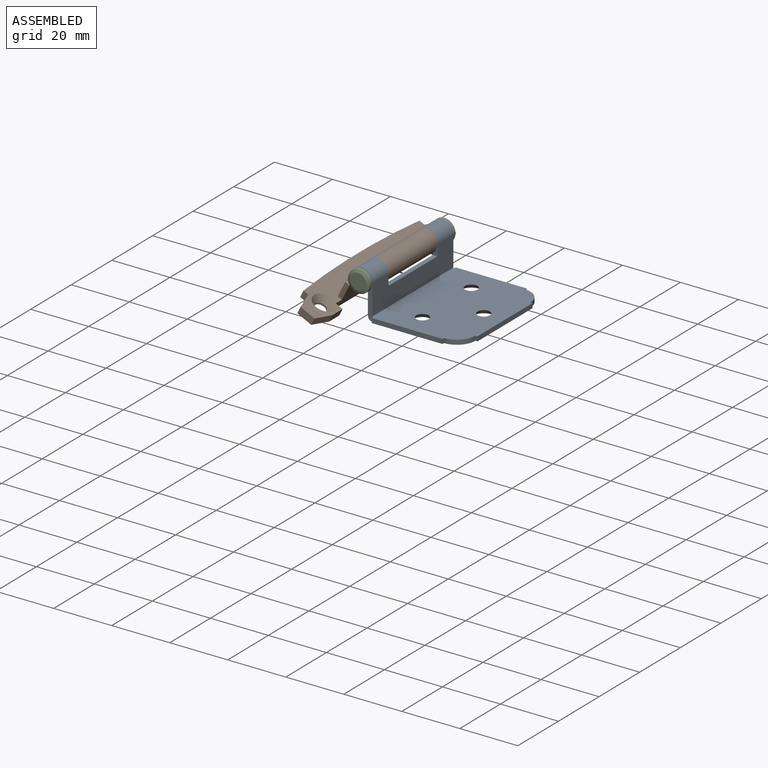
[diagram: assembled view]
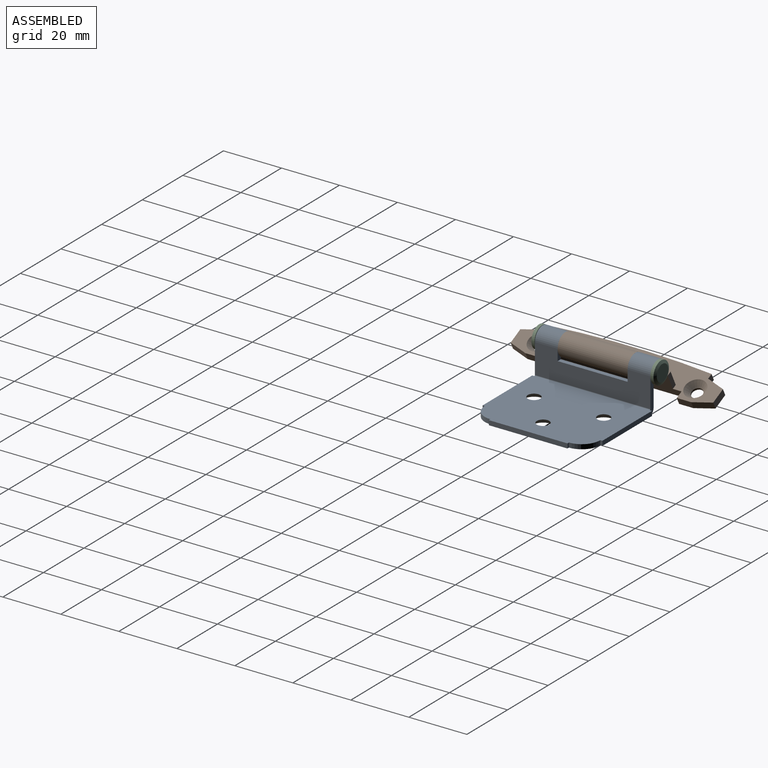
[diagram: assembled view, second angle]
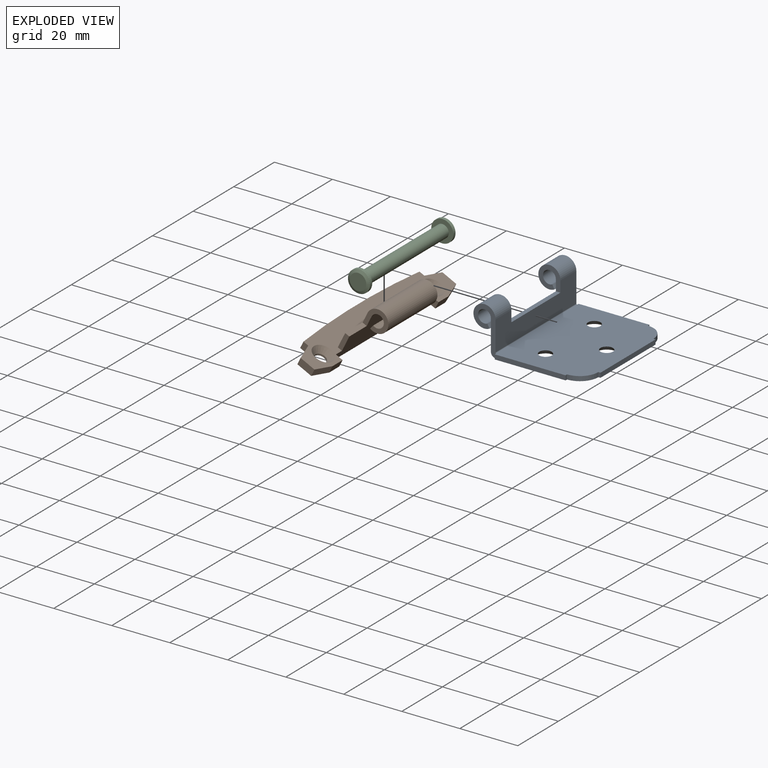
[diagram: exploded view]
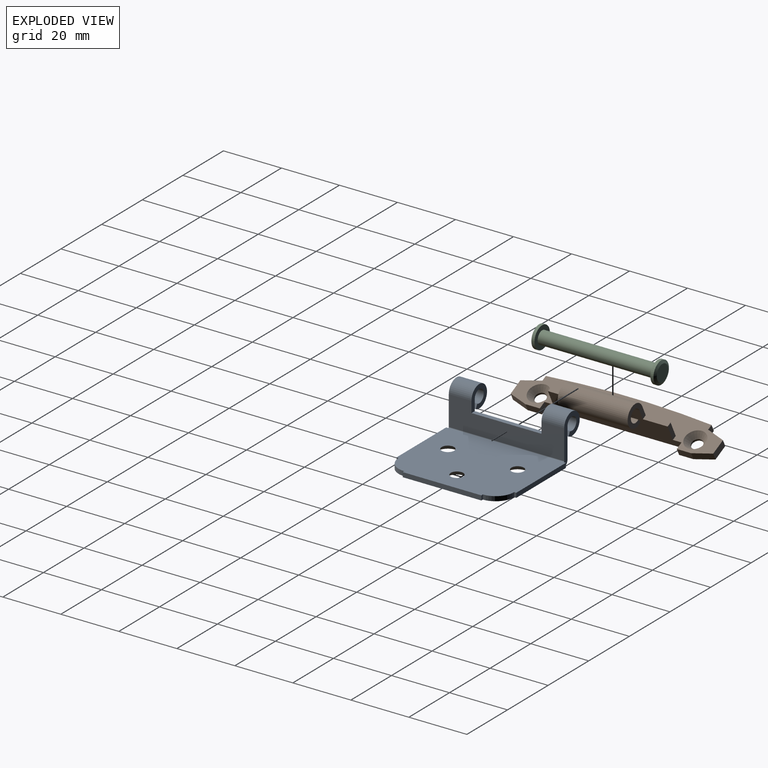
[diagram: exploded view, second angle]
ASSEMBLY  parts=3 mates=2
PART A: 31 faces, bbox 39.4x41.3x15.9 mm
  f0: plane 41.28x31.72mm, normal (0,0,-1), area 1153.7mm2, adj f9,f11,f12,f14,f15,f16,f17,f18
  f1: cylinder r=2.22mm len=7.84mm, axis (0,-1,0), area 90.2mm2, adj f2,f10,f22,f25
  f2: plane 7.84x1.42mm, normal (0.89,0,0.45), area 12.4mm2, adj f1,f6,f22,f25
  f3: cylinder r=3.81mm len=7.84mm, axis (0,-1,0), area 154.6mm2, adj f5,f7,f24,f27
  f4: cylinder r=2.22mm len=7.84mm, axis (0,-1,0), area 90.2mm2, adj f5,f10,f24,f27
  f5: plane 7.84x1.42mm, normal (0.89,0,0.45), area 12.4mm2, adj f3,f4,f24,f27
  f6: cylinder r=3.81mm len=7.84mm, axis (0,-1,0), area 154.6mm2, adj f2,f7,f22,f25
  f7: plane 39.8x10.22mm, normal (1,0,0), area 315mm2, adj f3,f6,f13,f22,f24,f25,f26,f27
  f8: plane 41.28x31.5mm, normal (0,0,1), area 1218.8mm2, adj f9,f11,f12,f13,f15,f16,f17,f18
  f9: plane 27.1x1.59mm, normal (1,0,0), area 43mm2, adj f0,f8,f15,f18
  f10: plane 39.8x10.45mm, normal (-1,0,0), area 324.1mm2, adj f1,f4,f14,f22,f24,f25,f26,f27
  f11: plane 24.41x1.59mm, normal (0,1,0), area 38.7mm2, adj f0,f8,f20,f21
  f12: plane 24.41x1.59mm, normal (0,-1,0), area 38.7mm2, adj f0,f8,f16,f23
  f13: cylinder r=0.25mm len=39.8mm, axis (0,1,0), area 15.9mm2, adj f7,f8,f22,f24
  f14: cylinder r=1.61mm len=39.8mm, axis (0,-1,0), area 100.8mm2, adj f0,f10,f22,f24
  f15: plane 1.59x0.74mm, normal (0,-1,0), area 1.2mm2, adj f0,f8,f9,f17
  f16: plane 1.59x0.74mm, normal (1,0,0), area 1.2mm2, adj f0,f8,f12,f17
  f17: cylinder r=6.35mm len=6.35mm, axis (0,0,1), area 15.8mm2, adj f0,f8,f15,f16
  f18: plane 1.59x0.74mm, normal (0,1,0), area 1.2mm2, adj f0,f8,f9,f19
  f19: cylinder r=6.35mm len=6.35mm, axis (0,0,1), area 15.8mm2, adj f0,f8,f18,f20
  f20: plane 1.59x0.74mm, normal (1,0,0), area 1.2mm2, adj f0,f8,f11,f19
  f21: plane 1.59x0.74mm, normal (-1,0,0), area 1.2mm2, adj f0,f8,f11,f22
  f22: plane 15.88x7.87mm, normal (0,1,0), area 43.8mm2, adj f0,f1,f2,f6,f7,f10,f13,f14
  f23: plane 1.59x0.74mm, normal (-1,0,0), area 1.2mm2, adj f0,f8,f12,f24
  f24: plane 15.88x7.87mm, normal (0,-1,0), area 43.8mm2, adj f0,f3,f4,f5,f7,f10,f13,f14
  f25: plane 7.62x7.62mm, normal (0,-1,0), area 30.8mm2, adj f1,f2,f6,f7,f10,f26
  f26: plane 24.13x1.59mm, normal (0,0,1), area 38.3mm2, adj f7,f10,f25,f27
  f27: plane 7.62x7.62mm, normal (0,1,0), area 30.8mm2, adj f3,f4,f5,f7,f10,f26
  f28: cone r=3.54mm half-angle=41deg, axis (0,0,-1), area 37.7mm2, adj f0,f8
  f29: cone r=3.54mm half-angle=41deg, axis (0,0,-1), area 37.7mm2, adj f0,f8
  f30: cone r=3.54mm half-angle=41deg, axis (0,0,-1), area 37.7mm2, adj f0,f8
PART B: 30 faces, bbox 15.9x69.9x15.9 mm
  f0: plane 6.35x2.54mm, normal (0.95,0.3,0), area 16.9mm2, adj f1,f7,f8,f9
  f1: plane 5.33x2.54mm, normal (0,1,0), area 13.5mm2, adj f0,f2,f8,f9
  f2: plane 6.35x2.54mm, normal (-0.95,0.3,0), area 16.9mm2, adj f1,f3,f8,f9
  f3: plane 2.54x1.86mm, normal (0,1,0), area 4.7mm2, adj f2,f4,f8,f9
  f4: cylinder r=328.61mm len=57.15mm, axis (0,0,-1), area 145.3mm2, adj f3,f8,f9,f13
  f5: plane 47.24x12.07mm, normal (1,0,0), area 447.8mm2, adj f6,f8,f9,f14,f19,f20,f21,f22
  f6: plane 2.58x2.54mm, normal (0,-1,0), area 6.6mm2, adj f5,f7,f8,f9
  f7: plane 4.95x2.54mm, normal (1,0,0), area 12.6mm2, adj f0,f6,f8,f9
  f8: plane 69.85x12.45mm, normal (0,0,1), area 514.5mm2, adj f0,f1,f2,f3,f4,f5,f6,f7
  f9: plane 69.85x12.45mm, normal (0,0,-1), area 636.3mm2, adj f0,f1,f2,f3,f4,f5,f6,f7
  f10: plane 6.35x2.54mm, normal (0.95,-0.3,0), area 16.9mm2, adj f8,f9,f11,f15
  f11: plane 5.33x2.54mm, normal (0,-1,0), area 13.5mm2, adj f8,f9,f10,f12
  f12: plane 6.35x2.54mm, normal (-0.95,-0.3,0), area 16.9mm2, adj f8,f9,f11,f13
  f13: plane 2.54x1.86mm, normal (0,-1,0), area 4.7mm2, adj f4,f8,f9,f12
  f14: plane 2.58x2.54mm, normal (0,1,0), area 6.6mm2, adj f5,f8,f9,f15
  f15: plane 4.95x2.54mm, normal (1,0,0), area 12.6mm2, adj f8,f9,f10,f14
  f16: cylinder r=3.81mm len=24.13mm, axis (0,-1,0), area 456.5mm2, adj f17,f18,f22,f24
  f17: plane 41.28x9.53mm, normal (-1,0,0), area 327.8mm2, adj f8,f16,f20,f21,f22,f23,f24,f25
  f18: plane 24.13x1.54mm, normal (-0.97,0,0.25), area 38.3mm2, adj f16,f19,f22,f24
  f19: cylinder r=2.22mm len=24.13mm, axis (0,-1,0), area 266.3mm2, adj f5,f18,f22,f24
  f20: plane 5.72x1.59mm, normal (0,1,0), area 9.1mm2, adj f5,f8,f17,f23
  f21: plane 5.72x1.59mm, normal (0,-1,0), area 9.1mm2, adj f5,f8,f17,f25
  f22: plane 7.62x7.62mm, normal (0,1,0), area 29.8mm2, adj f5,f16,f17,f18,f19,f23
  f23: plane 8.57x1.59mm, normal (0,0,1), area 13.6mm2, adj f5,f17,f20,f22
  f24: plane 7.62x7.62mm, normal (0,-1,0), area 29.8mm2, adj f5,f16,f17,f18,f19,f25
  f25: plane 8.57x1.59mm, normal (0,0,1), area 13.6mm2, adj f5,f17,f21,f24
  f26: cone r=3.54mm half-angle=41deg, axis (0,0,1), area 42.9mm2, adj f8,f27
  f27: cylinder r=1.9mm len=3.8mm, axis (0,0,1), area 7.7mm2, adj f9,f26
  f28: cone r=3.54mm half-angle=41deg, axis (0,0,1), area 42.9mm2, adj f8,f29
  f29: cylinder r=1.9mm len=3.8mm, axis (0,0,1), area 7.7mm2, adj f9,f28
PART C: 9 faces, bbox 7.6x43x7.6 mm
  f0: plane 5.68x5.68mm, normal (0,1,0), area 25.3mm2, adj f4
  f1: cylinder r=2.24mm len=39.95mm, axis (0,-1,0), area 561.1mm2, adj f2,f6
  f2: plane 7.62x7.62mm, normal (0,-1,0), area 29.9mm2, adj f1,f3
  f3: cylinder r=3.81mm len=7.62mm, axis (0,-1,0), area 25.6mm2, adj f2,f4
  f4: cone r=3.81mm half-angle=65deg, axis (0,-1,0), area 22.4mm2, adj f0,f3
  f5: plane 5.68x5.68mm, normal (0,-1,0), area 25.3mm2, adj f8
  f6: plane 7.62x7.62mm, normal (0,1,0), area 29.9mm2, adj f1,f7
  f7: cylinder r=3.81mm len=7.62mm, axis (0,1,0), area 25.6mm2, adj f6,f8
  f8: cone r=3.81mm half-angle=65deg, axis (0,1,0), area 22.4mm2, adj f5,f7
PLACE A at identity fixed
PLACE B rot(axis=(0,1,0),26.3deg) t=(0,0,0)mm
PLACE C t=(0,-0.08,0)mm
MATE revolute B.f16 <-> A.f1  axis (0,-1,0) through (0,-12.07,0)mm
MATE fastened C.f1 <-> A.f1  axis (0,-1,0) through (0,19.9,0)mm
